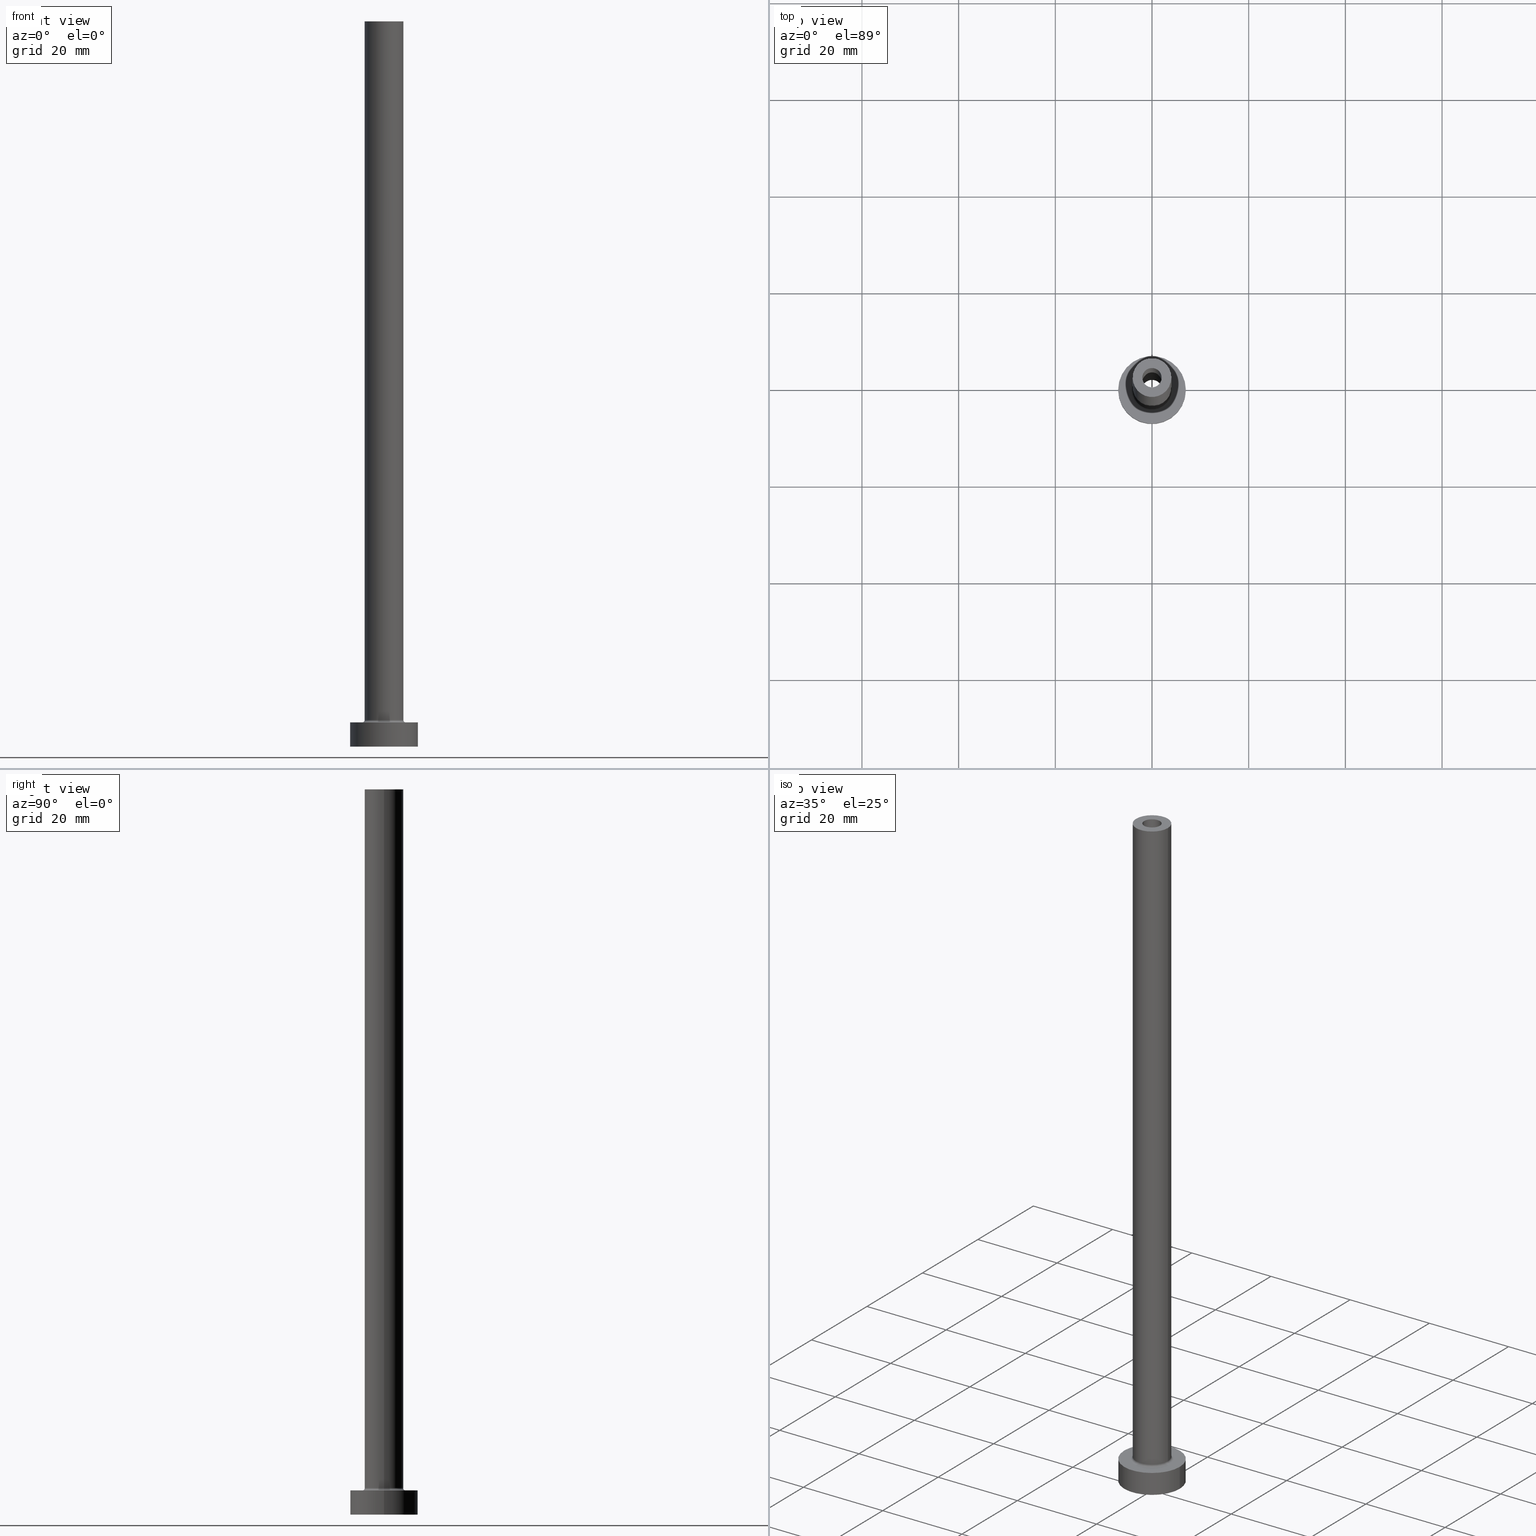
[diagram: canonical four-view strip — front | top / right | iso, engineering-drawing reading convention]
A machine part, canonical four-view strip (front | top / right | iso — engineering-drawing reading convention). The complete STEP part file that produces these views, byte-faithful:
ISO-10303-21;
HEADER;
FILE_DESCRIPTION (( 'STEP AP203' ),
    '1' );
FILE_NAME ('9f6f.STEP',
    '2023-02-13T17:39:51',
    ( '' ),
    ( '' ),
    'SwSTEP 2.0',
    'SolidWorks 2019',
    '' );
FILE_SCHEMA (( 'CONFIG_CONTROL_DESIGN' ));
ENDSEC;

DATA;
#1 = EDGE_LOOP ( 'NONE', ( #318, #249 ) ) ;
#2 = CALENDAR_DATE ( 2023, 13, 2 ) ;
#3 = DIRECTION ( 'NONE',  ( 0.000000000000000000, 0.000000000000000000, 1.000000000000000000 ) ) ;
#4 = ORIENTED_EDGE ( 'NONE', *, *, #16, .T. ) ;
#5 = APPROVAL_PERSON_ORGANIZATION ( #150, #290, #76 ) ;
#6 = ORIENTED_EDGE ( 'NONE', *, *, #260, .T. ) ;
#7 = DIRECTION ( 'NONE',  ( -0.000000000000000000, -0.000000000000000000, -1.000000000000000000 ) ) ;
#8 =( NAMED_UNIT ( * ) SI_UNIT ( $, .STERADIAN. ) SOLID_ANGLE_UNIT ( ) );
#9 = ORIENTED_EDGE ( 'NONE', *, *, #151, .T. ) ;
#10 = CARTESIAN_POINT ( 'NONE',  ( 0.000000000000000000, 0.000000000000000000, 5.000000000000000000 ) ) ;
#11 = AXIS2_PLACEMENT_3D ( 'NONE', #242, #391, #131 ) ;
#12 = EDGE_CURVE ( 'NONE', #15, #372, #271, .T. ) ;
#13 = CALENDAR_DATE ( 2023, 13, 2 ) ;
#14 = ADVANCED_BREP_SHAPE_REPRESENTATION ( '9f6f', ( #267, #137 ), #116 ) ;
#15 = VERTEX_POINT ( 'NONE', #234 ) ;
#16 = EDGE_CURVE ( 'NONE', #363, #251, #229, .T. ) ;
#17 = CARTESIAN_POINT ( 'NONE',  ( 0.000000000000000000, 0.000000000000000000, 150.0000000000000000 ) ) ;
#18 = PERSON_AND_ORGANIZATION ( #88, #413 ) ;
#19 = LINE ( 'NONE', #110, #172 ) ;
#20 = AXIS2_PLACEMENT_3D ( 'NONE', #54, #352, #198 ) ;
#21 = EDGE_CURVE ( 'NONE', #94, #77, #333, .T. ) ;
#22 = DIRECTION ( 'NONE',  ( 0.000000000000000000, 0.000000000000000000, 1.000000000000000000 ) ) ;
#23 = DIRECTION ( 'NONE',  ( 0.000000000000000000, 0.000000000000000000, 1.000000000000000000 ) ) ;
#24 = EDGE_CURVE ( 'NONE', #36, #182, #208, .T. ) ;
#25 = ADVANCED_FACE ( 'NONE', ( #197, #28 ), #306, .F. ) ;
#26 = AXIS2_PLACEMENT_3D ( 'NONE', #121, #386, #83 ) ;
#27 = CARTESIAN_POINT ( 'NONE',  ( -2.149999999999999911, 0.000000000000000000, 111.0811183182043180 ) ) ;
#28 = FACE_OUTER_BOUND ( 'NONE', #185, .T. ) ;
#29 = CC_DESIGN_PERSON_AND_ORGANIZATION_ASSIGNMENT ( #68, #401, ( #111 ) ) ;
#30 = DIRECTION ( 'NONE',  ( 0.000000000000000000, 0.000000000000000000, -1.000000000000000000 ) ) ;
#31 = EDGE_LOOP ( 'NONE', ( #443, #72, #209, #341 ) ) ;
#32 = APPROVAL_DATE_TIME ( #133, #98 ) ;
#33 = CIRCLE ( 'NONE', #425, 4.500000000000000888 ) ;
#34 = ORIENTED_EDGE ( 'NONE', *, *, #216, .F. ) ;
#35 = PERSON_AND_ORGANIZATION_ROLE ( 'creator' ) ;
#36 = VERTEX_POINT ( 'NONE', #122 ) ;
#37 = ORIENTED_EDGE ( 'NONE', *, *, #305, .T. ) ;
#38 = EDGE_CURVE ( 'NONE', #301, #291, #456, .T. ) ;
#39 = CARTESIAN_POINT ( 'NONE',  ( 4.000000000000000000, 4.898587196589412829E-16, 150.0000000000000000 ) ) ;
#40 = TOROIDAL_SURFACE ( 'NONE', #11, 4.500000000000000888, 0.5000000000000000000 ) ;
#41 = EDGE_LOOP ( 'NONE', ( #218, #171 ) ) ;
#42 = ORIENTED_EDGE ( 'NONE', *, *, #274, .T. ) ;
#43 = CARTESIAN_POINT ( 'NONE',  ( 4.000000000000000000, 4.898587196589412829E-16, 5.500000000000005329 ) ) ;
#44 = CIRCLE ( 'NONE', #104, 7.000000000000000000 ) ;
#45 = EDGE_LOOP ( 'NONE', ( #259, #297, #6, #436 ) ) ;
#46 = DIRECTION ( 'NONE',  ( -1.000000000000000000, 0.000000000000000000, 0.000000000000000000 ) ) ;
#47 = MECHANICAL_CONTEXT ( 'NONE', #205, 'mechanical' ) ;
#48 = ORIENTED_EDGE ( 'NONE', *, *, #134, .F. ) ;
#49 = EDGE_CURVE ( 'NONE', #389, #245, #244, .T. ) ;
#50 = TOROIDAL_SURFACE ( 'NONE', #320, 4.500000000000000888, 0.5000000000000000000 ) ;
#51 = DATE_AND_TIME ( #13, #272 ) ;
#52 = DIRECTION ( 'NONE',  ( 0.000000000000000000, 0.000000000000000000, -1.000000000000000000 ) ) ;
#53 = CC_DESIGN_DATE_AND_TIME_ASSIGNMENT ( #51, #451, ( #70 ) ) ;
#54 = CARTESIAN_POINT ( 'NONE',  ( 0.000000000000000000, 0.000000000000000000, 5.000000000000000000 ) ) ;
#55 = APPROVAL_STATUS ( 'not_yet_approved' ) ;
#56 = DIRECTION ( 'NONE',  ( -0.000000000000000000, -0.000000000000000000, -1.000000000000000000 ) ) ;
#57 = AXIS2_PLACEMENT_3D ( 'NONE', #308, #347, #157 ) ;
#58 = CIRCLE ( 'NONE', #426, 2.000000000000000000 ) ;
#59 = CARTESIAN_POINT ( 'NONE',  ( -2.000000000000000000, 0.000000000000000000, 150.0000000000000000 ) ) ;
#60 = APPROVAL_ROLE ( '' ) ;
#61 = ADVANCED_FACE ( 'NONE', ( #351 ), #166, .F. ) ;
#62 = AXIS2_PLACEMENT_3D ( 'NONE', #419, #453, #227 ) ;
#63 = FACE_OUTER_BOUND ( 'NONE', #282, .T. ) ;
#64 = AXIS2_PLACEMENT_3D ( 'NONE', #344, #22, #175 ) ;
#65 = CC_DESIGN_APPROVAL ( #348, ( #396 ) ) ;
#66 = PRODUCT_RELATED_PRODUCT_CATEGORY ( 'detail', '', ( #204 ) ) ;
#67 = CARTESIAN_POINT ( 'NONE',  ( 2.000000000000000000, 2.449293598294705921E-16, 105.0000000000000000 ) ) ;
#68 = PERSON_AND_ORGANIZATION ( #88, #413 ) ;
#69 = CARTESIAN_POINT ( 'NONE',  ( 0.000000000000000000, 0.000000000000000000, 5.500000000000005329 ) ) ;
#70 = PRODUCT_DEFINITION ( 'NEZN�M�', '', #396, #399 ) ;
#71 = CIRCLE ( 'NONE', #64, 2.149999999999999911 ) ;
#72 = ORIENTED_EDGE ( 'NONE', *, *, #423, .T. ) ;
#73 =( NAMED_UNIT ( * ) PLANE_ANGLE_UNIT ( ) SI_UNIT ( $, .RADIAN. ) );
#74 = FACE_OUTER_BOUND ( 'NONE', #132, .T. ) ;
#75 = EDGE_LOOP ( 'NONE', ( #81, #9 ) ) ;
#76 = APPROVAL_ROLE ( '' ) ;
#77 = VERTEX_POINT ( 'NONE', #377 ) ;
#78 = ORIENTED_EDGE ( 'NONE', *, *, #409, .F. ) ;
#79 = PERSON_AND_ORGANIZATION_ROLE ( 'design_owner' ) ;
#80 = CARTESIAN_POINT ( 'NONE',  ( 0.000000000000000000, 0.000000000000000000, 0.000000000000000000 ) ) ;
#81 = ORIENTED_EDGE ( 'NONE', *, *, #38, .T. ) ;
#82 = CARTESIAN_POINT ( 'NONE',  ( 0.000000000000000000, 0.000000000000000000, 150.0000000000000000 ) ) ;
#83 = DIRECTION ( 'NONE',  ( 1.000000000000000000, 0.000000000000000000, 0.000000000000000000 ) ) ;
#84 = CARTESIAN_POINT ( 'NONE',  ( 0.000000000000000000, 0.000000000000000000, 5.000000000000000000 ) ) ;
#85 = VECTOR ( 'NONE', #7, 1000.000000000000000 ) ;
#86 = ADVANCED_FACE ( 'NONE', ( #304 ), #407, .T. ) ;
#87 = DATE_AND_TIME ( #312, #196 ) ;
#88 = PERSON ( 'NEUR�EN�', 'NEUR�EN�', 'NEUR�EN�', ('NEUR�EN�'), ('NEUR�EN�'), ('NEUR�EN�') ) ;
#89 = CARTESIAN_POINT ( 'NONE',  ( -2.149999999999999911, 0.000000000000000000, 0.000000000000000000 ) ) ;
#90 = DIRECTION ( 'NONE',  ( 0.000000000000000000, 0.000000000000000000, 1.000000000000000000 ) ) ;
#91 = CARTESIAN_POINT ( 'NONE',  ( -4.000000000000000000, 0.000000000000000000, 150.0000000000000000 ) ) ;
#92 = AXIS2_PLACEMENT_3D ( 'NONE', #84, #23, #421 ) ;
#93 = CIRCLE ( 'NONE', #26, 2.000000000000000000 ) ;
#94 = VERTEX_POINT ( 'NONE', #258 ) ;
#95 = EDGE_CURVE ( 'NONE', #182, #36, #417, .T. ) ;
#96 = DIRECTION ( 'NONE',  ( -1.000000000000000000, 0.000000000000000000, 0.000000000000000000 ) ) ;
#97 = PERSON_AND_ORGANIZATION ( #88, #413 ) ;
#98 = APPROVAL ( #101, 'NEUR�EN�' ) ;
#99 = CARTESIAN_POINT ( 'NONE',  ( 0.000000000000000000, 0.000000000000000000, 5.000000000000000000 ) ) ;
#100 = ORIENTED_EDGE ( 'NONE', *, *, #49, .T. ) ;
#101 = APPROVAL_STATUS ( 'not_yet_approved' ) ;
#102 = AXIS2_PLACEMENT_3D ( 'NONE', #455, #450, #124 ) ;
#103 = CARTESIAN_POINT ( 'NONE',  ( 2.000000000000000000, 2.449293598294705921E-16, 150.0000000000000000 ) ) ;
#104 = AXIS2_PLACEMENT_3D ( 'NONE', #10, #440, #444 ) ;
#105 = ADVANCED_FACE ( 'NONE', ( #449 ), #193, .T. ) ;
#106 = DIRECTION ( 'NONE',  ( -0.000000000000000000, -0.000000000000000000, -1.000000000000000000 ) ) ;
#107 = ORIENTED_EDGE ( 'NONE', *, *, #151, .F. ) ;
#108 = DIRECTION ( 'NONE',  ( -0.000000000000000000, -0.000000000000000000, -1.000000000000000000 ) ) ;
#109 = DIRECTION ( 'NONE',  ( 1.000000000000000000, 0.000000000000000000, 0.000000000000000000 ) ) ;
#110 = CARTESIAN_POINT ( 'NONE',  ( -4.000000000000000000, 0.000000000000000000, 150.0000000000000000 ) ) ;
#111 = SECURITY_CLASSIFICATION ( '', '', #174 ) ;
#112 = APPLICATION_PROTOCOL_DEFINITION ( 'international standard', 'config_control_design', 1994, #205 ) ;
#113 = CARTESIAN_POINT ( 'NONE',  ( -4.500000000000000888, 5.510910596163088569E-16, 5.000000000000002665 ) ) ;
#114 = ORIENTED_EDGE ( 'NONE', *, *, #216, .T. ) ;
#115 = EDGE_CURVE ( 'NONE', #332, #286, #303, .T. ) ;
#116 =( GEOMETRIC_REPRESENTATION_CONTEXT ( 3 ) GLOBAL_UNCERTAINTY_ASSIGNED_CONTEXT ( ( #118 ) ) GLOBAL_UNIT_ASSIGNED_CONTEXT ( ( #411, #73, #8 ) ) REPRESENTATION_CONTEXT ( 'NONE', 'WORKASPACE' ) );
#117 = EDGE_LOOP ( 'NONE', ( #42, #280, #189, #225 ) ) ;
#118 = UNCERTAINTY_MEASURE_WITH_UNIT (LENGTH_MEASURE( 1.000000000000000082E-05 ), #411, 'distance_accuracy_value', 'NONE');
#119 = DIRECTION ( 'NONE',  ( 0.000000000000000000, 0.000000000000000000, -1.000000000000000000 ) ) ;
#120 = PERSON_AND_ORGANIZATION ( #88, #413 ) ;
#121 = CARTESIAN_POINT ( 'NONE',  ( 0.000000000000000000, 0.000000000000000000, 150.0000000000000000 ) ) ;
#122 = CARTESIAN_POINT ( 'NONE',  ( 2.149999999999999911, 2.632990618166809235E-16, 0.000000000000000000 ) ) ;
#123 = DIRECTION ( 'NONE',  ( 0.000000000000000000, 0.000000000000000000, 1.000000000000000000 ) ) ;
#124 = DIRECTION ( 'NONE',  ( 1.000000000000000000, 0.000000000000000000, 0.000000000000000000 ) ) ;
#125 = CARTESIAN_POINT ( 'NONE',  ( 0.000000000000000000, 0.000000000000000000, 5.000000000000000000 ) ) ;
#126 = DIRECTION ( 'NONE',  ( 1.000000000000000000, 0.000000000000000000, 0.000000000000000000 ) ) ;
#127 = EDGE_CURVE ( 'NONE', #251, #265, #19, .T. ) ;
#128 = AXIS2_PLACEMENT_3D ( 'NONE', #99, #106, #96 ) ;
#129 = CARTESIAN_POINT ( 'NONE',  ( -7.000000000000000000, 0.000000000000000000, 0.000000000000000000 ) ) ;
#130 = EDGE_LOOP ( 'NONE', ( #357, #414, #412, #100 ) ) ;
#131 = DIRECTION ( 'NONE',  ( 1.000000000000000000, 0.000000000000000000, 0.000000000000000000 ) ) ;
#132 = EDGE_LOOP ( 'NONE', ( #408, #152, #445, #107 ) ) ;
#133 = DATE_AND_TIME ( #211, #264 ) ;
#134 = EDGE_CURVE ( 'NONE', #15, #389, #254, .T. ) ;
#135 = CYLINDRICAL_SURFACE ( 'NONE', #188, 2.149999999999999911 ) ;
#136 = ORIENTED_EDGE ( 'NONE', *, *, #21, .F. ) ;
#137 = AXIS2_PLACEMENT_3D ( 'NONE', #366, #221, #109 ) ;
#138 = CC_DESIGN_PERSON_AND_ORGANIZATION_ASSIGNMENT ( #256, #79, ( #204 ) ) ;
#139 = VERTEX_POINT ( 'NONE', #43 ) ;
#140 = DIRECTION ( 'NONE',  ( 0.000000000000000000, 0.000000000000000000, 1.000000000000000000 ) ) ;
#141 = CARTESIAN_POINT ( 'NONE',  ( 4.500000000000000888, 0.000000000000000000, 5.000000000000002665 ) ) ;
#142 = ADVANCED_FACE ( 'NONE', ( #74 ), #145, .F. ) ;
#143 = CARTESIAN_POINT ( 'NONE',  ( 0.000000000000000000, 0.000000000000000000, 111.0811183182043180 ) ) ;
#144 = AXIS2_PLACEMENT_3D ( 'NONE', #186, #447, #298 ) ;
#145 = CYLINDRICAL_SURFACE ( 'NONE', #404, 2.000000000000000000 ) ;
#146 = CC_DESIGN_APPROVAL ( #98, ( #111 ) ) ;
#147 = CARTESIAN_POINT ( 'NONE',  ( 0.000000000000000000, 0.000000000000000000, 150.0000000000000000 ) ) ;
#148 = DIRECTION ( 'NONE',  ( -0.000000000000000000, -0.000000000000000000, -1.000000000000000000 ) ) ;
#149 = ORIENTED_EDGE ( 'NONE', *, *, #168, .F. ) ;
#150 = PERSON_AND_ORGANIZATION ( #88, #413 ) ;
#151 = EDGE_CURVE ( 'NONE', #291, #301, #58, .T. ) ;
#152 = ORIENTED_EDGE ( 'NONE', *, *, #115, .T. ) ;
#153 = FACE_OUTER_BOUND ( 'NONE', #207, .T. ) ;
#154 = DIRECTION ( 'NONE',  ( -1.000000000000000000, 0.000000000000000000, 0.000000000000000000 ) ) ;
#155 = CIRCLE ( 'NONE', #222, 0.5000000000000004441 ) ;
#156 = AXIS2_PLACEMENT_3D ( 'NONE', #370, #343, #154 ) ;
#157 = DIRECTION ( 'NONE',  ( 1.000000000000000000, 0.000000000000000000, 0.000000000000000000 ) ) ;
#158 = DIRECTION ( 'NONE',  ( 0.000000000000000000, 0.000000000000000000, 1.000000000000000000 ) ) ;
#159 = CARTESIAN_POINT ( 'NONE',  ( 7.000000000000000000, 8.572527594031473190E-16, 0.000000000000000000 ) ) ;
#160 = DIRECTION ( 'NONE',  ( 1.000000000000000000, 0.000000000000000000, 0.000000000000000000 ) ) ;
#161 = COORDINATED_UNIVERSAL_TIME_OFFSET ( 1, 0, .AHEAD. ) ;
#162 = CARTESIAN_POINT ( 'NONE',  ( 0.000000000000000000, 0.000000000000000000, 0.000000000000000000 ) ) ;
#163 = VECTOR ( 'NONE', #108, 1000.000000000000000 ) ;
#164 = LOCAL_TIME ( 18, 39, 51.00000000000000000, #325 ) ;
#165 = DIRECTION ( 'NONE',  ( 0.000000000000000000, 0.000000000000000000, -1.000000000000000000 ) ) ;
#166 = CYLINDRICAL_SURFACE ( 'NONE', #285, 2.000000000000000000 ) ;
#167 = FACE_OUTER_BOUND ( 'NONE', #261, .T. ) ;
#168 = EDGE_CURVE ( 'NONE', #265, #139, #314, .T. ) ;
#169 = FACE_BOUND ( 'NONE', #293, .T. ) ;
#170 = AXIS2_PLACEMENT_3D ( 'NONE', #231, #90, #160 ) ;
#171 = ORIENTED_EDGE ( 'NONE', *, *, #24, .F. ) ;
#172 = VECTOR ( 'NONE', #307, 1000.000000000000000 ) ;
#173 = DIRECTION ( 'NONE',  ( 0.000000000000000000, 0.000000000000000000, 1.000000000000000000 ) ) ;
#174 = SECURITY_CLASSIFICATION_LEVEL ( 'unclassified' ) ;
#175 = DIRECTION ( 'NONE',  ( 1.000000000000000000, 0.000000000000000000, 0.000000000000000000 ) ) ;
#176 = ORIENTED_EDGE ( 'NONE', *, *, #257, .F. ) ;
#177 = CYLINDRICAL_SURFACE ( 'NONE', #128, 7.000000000000000000 ) ;
#178 = ORIENTED_EDGE ( 'NONE', *, *, #458, .F. ) ;
#179 = VECTOR ( 'NONE', #183, 1000.000000000000000 ) ;
#180 = ORIENTED_EDGE ( 'NONE', *, *, #458, .T. ) ;
#181 = CYLINDRICAL_SURFACE ( 'NONE', #230, 2.149999999999999911 ) ;
#182 = VERTEX_POINT ( 'NONE', #89 ) ;
#183 = DIRECTION ( 'NONE',  ( 0.000000000000000000, 0.000000000000000000, -1.000000000000000000 ) ) ;
#184 = DIRECTION ( 'NONE',  ( -0.000000000000000000, -0.000000000000000000, -1.000000000000000000 ) ) ;
#185 = EDGE_LOOP ( 'NONE', ( #199, #178 ) ) ;
#186 = CARTESIAN_POINT ( 'NONE',  ( 0.000000000000000000, 0.000000000000000000, 0.000000000000000000 ) ) ;
#187 = AXIS2_PLACEMENT_3D ( 'NONE', #269, #200, #310 ) ;
#188 = AXIS2_PLACEMENT_3D ( 'NONE', #431, #403, #362 ) ;
#189 = ORIENTED_EDGE ( 'NONE', *, *, #38, .F. ) ;
#190 = APPROVAL_STATUS ( 'not_yet_approved' ) ;
#191 = CC_DESIGN_PERSON_AND_ORGANIZATION_ASSIGNMENT ( #437, #355, ( #396 ) ) ;
#192 = APPLICATION_PROTOCOL_DEFINITION ( 'international standard', 'config_control_design', 1994, #235 ) ;
#193 = CYLINDRICAL_SURFACE ( 'NONE', #156, 7.000000000000000000 ) ;
#194 = DIRECTION ( 'NONE',  ( -1.000000000000000000, 0.000000000000000000, 0.000000000000000000 ) ) ;
#195 = CIRCLE ( 'NONE', #460, 4.000000000000000000 ) ;
#196 = LOCAL_TIME ( 18, 39, 51.00000000000000000, #161 ) ;
#197 = FACE_BOUND ( 'NONE', #41, .T. ) ;
#198 = DIRECTION ( 'NONE',  ( 1.000000000000000000, 0.000000000000000000, 0.000000000000000000 ) ) ;
#199 = ORIENTED_EDGE ( 'NONE', *, *, #49, .F. ) ;
#200 = DIRECTION ( 'NONE',  ( 0.000000000000000000, 0.000000000000000000, 1.000000000000000000 ) ) ;
#201 = AXIS2_PLACEMENT_3D ( 'NONE', #82, #158, #340 ) ;
#202 = EDGE_CURVE ( 'NONE', #332, #291, #278, .T. ) ;
#203 = CARTESIAN_POINT ( 'NONE',  ( 0.000000000000000000, 0.000000000000000000, 5.000000000000000000 ) ) ;
#204 = PRODUCT ( '9f6f', '9f6f', '', ( #47 ) ) ;
#205 = APPLICATION_CONTEXT ( 'configuration controlled 3d designs of mechanical parts and assemblies' ) ;
#206 = CC_DESIGN_PERSON_AND_ORGANIZATION_ASSIGNMENT ( #18, #219, ( #70 ) ) ;
#207 = EDGE_LOOP ( 'NONE', ( #255, #78, #345, #288 ) ) ;
#208 = CIRCLE ( 'NONE', #62, 2.149999999999999911 ) ;
#209 = ORIENTED_EDGE ( 'NONE', *, *, #24, .T. ) ;
#210 = AXIS2_PLACEMENT_3D ( 'NONE', #125, #457, #238 ) ;
#211 = CALENDAR_DATE ( 2023, 13, 2 ) ;
#212 = CARTESIAN_POINT ( 'NONE',  ( 0.000000000000000000, 0.000000000000000000, 105.0000000000000000 ) ) ;
#213 = ORIENTED_EDGE ( 'NONE', *, *, #16, .F. ) ;
#214 = ORIENTED_EDGE ( 'NONE', *, *, #220, .T. ) ;
#215 = VECTOR ( 'NONE', #165, 1000.000000000000000 ) ;
#216 = EDGE_CURVE ( 'NONE', #429, #405, #373, .T. ) ;
#217 = CC_DESIGN_APPROVAL ( #290, ( #70 ) ) ;
#218 = ORIENTED_EDGE ( 'NONE', *, *, #95, .F. ) ;
#219 = PERSON_AND_ORGANIZATION_ROLE ( 'creator' ) ;
#220 = EDGE_CURVE ( 'NONE', #139, #405, #155, .T. ) ;
#221 = DIRECTION ( 'NONE',  ( 0.000000000000000000, 0.000000000000000000, 1.000000000000000000 ) ) ;
#222 = AXIS2_PLACEMENT_3D ( 'NONE', #240, #388, #30 ) ;
#223 = COORDINATED_UNIVERSAL_TIME_OFFSET ( 1, 0, .AHEAD. ) ;
#224 = DIRECTION ( 'NONE',  ( 1.000000000000000000, 0.000000000000000000, 0.000000000000000000 ) ) ;
#225 = ORIENTED_EDGE ( 'NONE', *, *, #281, .F. ) ;
#226 = FACE_OUTER_BOUND ( 'NONE', #45, .T. ) ;
#227 = DIRECTION ( 'NONE',  ( 1.000000000000000000, 0.000000000000000000, 0.000000000000000000 ) ) ;
#228 = LINE ( 'NONE', #59, #279 ) ;
#229 = CIRCLE ( 'NONE', #57, 4.000000000000000000 ) ;
#230 = AXIS2_PLACEMENT_3D ( 'NONE', #143, #376, #292 ) ;
#231 = CARTESIAN_POINT ( 'NONE',  ( 0.000000000000000000, 0.000000000000000000, 105.0000000000000000 ) ) ;
#232 = PLANE ( 'NONE',  #387 ) ;
#233 = ADVANCED_FACE ( 'NONE', ( #270, #167 ), #232, .T. ) ;
#234 = CARTESIAN_POINT ( 'NONE',  ( -7.000000000000000000, 0.000000000000000000, 5.000000000000000000 ) ) ;
#235 = APPLICATION_CONTEXT ( 'configuration controlled 3d designs of mechanical parts and assemblies' ) ;
#236 = DIRECTION ( 'NONE',  ( 1.000000000000000000, 0.000000000000000000, -0.000000000000000000 ) ) ;
#237 = DIRECTION ( 'NONE',  ( 0.000000000000000000, 0.000000000000000000, 1.000000000000000000 ) ) ;
#238 = DIRECTION ( 'NONE',  ( 1.000000000000000000, 0.000000000000000000, -0.000000000000000000 ) ) ;
#239 = AXIS2_PLACEMENT_3D ( 'NONE', #212, #3, #319 ) ;
#240 = CARTESIAN_POINT ( 'NONE',  ( 4.500000000000000888, 0.000000000000000000, 5.500000000000005329 ) ) ;
#241 = EDGE_LOOP ( 'NONE', ( #149, #37, #176, #375 ) ) ;
#242 = CARTESIAN_POINT ( 'NONE',  ( 0.000000000000000000, 0.000000000000000000, 5.500000000000005329 ) ) ;
#243 = DIRECTION ( 'NONE',  ( 1.000000000000000000, 0.000000000000000000, 0.000000000000000000 ) ) ;
#244 = CIRCLE ( 'NONE', #102, 7.000000000000000000 ) ;
#245 = VERTEX_POINT ( 'NONE', #159 ) ;
#246 = AXIS2_PLACEMENT_3D ( 'NONE', #147, #380, #406 ) ;
#247 = DATE_TIME_ROLE ( 'classification_date' ) ;
#248 = FACE_BOUND ( 'NONE', #75, .T. ) ;
#249 = ORIENTED_EDGE ( 'NONE', *, *, #454, .T. ) ;
#250 = DIRECTION ( 'NONE',  ( 1.000000000000000000, 0.000000000000000000, 0.000000000000000000 ) ) ;
#251 = VERTEX_POINT ( 'NONE', #91 ) ;
#252 = CARTESIAN_POINT ( 'NONE',  ( 4.000000000000000000, 4.898587196589412829E-16, 150.0000000000000000 ) ) ;
#253 = AXIS2_PLACEMENT_3D ( 'NONE', #415, #331, #194 ) ;
#254 = LINE ( 'NONE', #299, #364 ) ;
#255 = ORIENTED_EDGE ( 'NONE', *, *, #367, .F. ) ;
#256 = PERSON_AND_ORGANIZATION ( #88, #413 ) ;
#257 = EDGE_CURVE ( 'NONE', #405, #429, #33, .T. ) ;
#258 = CARTESIAN_POINT ( 'NONE',  ( 2.149999999999999911, 2.632990618166809235E-16, 105.0000000000000000 ) ) ;
#259 = ORIENTED_EDGE ( 'NONE', *, *, #423, .F. ) ;
#260 = EDGE_CURVE ( 'NONE', #77, #182, #416, .T. ) ;
#261 = EDGE_LOOP ( 'NONE', ( #441, #4 ) ) ;
#262 = CARTESIAN_POINT ( 'NONE',  ( 2.149999999999999911, 2.632990618166809235E-16, 111.0811183182043180 ) ) ;
#263 = AXIS2_PLACEMENT_3D ( 'NONE', #418, #382, #385 ) ;
#264 = LOCAL_TIME ( 18, 39, 51.00000000000000000, #390 ) ;
#265 = VERTEX_POINT ( 'NONE', #317 ) ;
#266 = DATE_AND_TIME ( #339, #439 ) ;
#267 = MANIFOLD_SOLID_BREP ( 'Odebrat vysunut�m4', #381 ) ;
#268 = ADVANCED_FACE ( 'NONE', ( #169, #276 ), #452, .T. ) ;
#269 = CARTESIAN_POINT ( 'NONE',  ( 0.000000000000000000, 0.000000000000000000, 105.0000000000000000 ) ) ;
#270 = FACE_BOUND ( 'NONE', #438, .T. ) ;
#271 = CIRCLE ( 'NONE', #92, 7.000000000000000000 ) ;
#272 = LOCAL_TIME ( 18, 39, 51.00000000000000000, #334 ) ;
#273 = CARTESIAN_POINT ( 'NONE',  ( 0.000000000000000000, 0.000000000000000000, 150.0000000000000000 ) ) ;
#274 = EDGE_CURVE ( 'NONE', #286, #332, #93, .T. ) ;
#275 = PERSON_AND_ORGANIZATION ( #88, #413 ) ;
#276 = FACE_OUTER_BOUND ( 'NONE', #1, .T. ) ;
#277 = CC_DESIGN_PERSON_AND_ORGANIZATION_ASSIGNMENT ( #275, #35, ( #396 ) ) ;
#278 = LINE ( 'NONE', #422, #395 ) ;
#279 = VECTOR ( 'NONE', #52, 1000.000000000000000 ) ;
#280 = ORIENTED_EDGE ( 'NONE', *, *, #202, .T. ) ;
#281 = EDGE_CURVE ( 'NONE', #286, #301, #228, .T. ) ;
#282 = EDGE_LOOP ( 'NONE', ( #336, #461, #180, #48 ) ) ;
#283 = EDGE_CURVE ( 'NONE', #77, #94, #71, .T. ) ;
#284 = CARTESIAN_POINT ( 'NONE',  ( -4.500000000000000888, 5.510910596163089556E-16, 5.500000000000005329 ) ) ;
#285 = AXIS2_PLACEMENT_3D ( 'NONE', #273, #119, #46 ) ;
#286 = VERTEX_POINT ( 'NONE', #287 ) ;
#287 = CARTESIAN_POINT ( 'NONE',  ( -2.000000000000000000, 0.000000000000000000, 150.0000000000000000 ) ) ;
#288 = ORIENTED_EDGE ( 'NONE', *, *, #168, .T. ) ;
#289 = CARTESIAN_POINT ( 'NONE',  ( 7.000000000000000000, 8.572527594031473190E-16, 5.000000000000000000 ) ) ;
#290 = APPROVAL ( #190, 'NEUR�EN�' ) ;
#291 = VERTEX_POINT ( 'NONE', #67 ) ;
#292 = DIRECTION ( 'NONE',  ( -1.000000000000000000, 0.000000000000000000, 0.000000000000000000 ) ) ;
#293 = EDGE_LOOP ( 'NONE', ( #300, #114 ) ) ;
#294 = CIRCLE ( 'NONE', #144, 7.000000000000000000 ) ;
#295 = DIRECTION ( 'NONE',  ( 1.000000000000000000, 0.000000000000000000, 0.000000000000000000 ) ) ;
#296 = CARTESIAN_POINT ( 'NONE',  ( 0.000000000000000000, 0.000000000000000000, 150.0000000000000000 ) ) ;
#297 = ORIENTED_EDGE ( 'NONE', *, *, #21, .T. ) ;
#298 = DIRECTION ( 'NONE',  ( 1.000000000000000000, 0.000000000000000000, 0.000000000000000000 ) ) ;
#299 = CARTESIAN_POINT ( 'NONE',  ( -7.000000000000000000, 0.000000000000000000, 5.000000000000000000 ) ) ;
#300 = ORIENTED_EDGE ( 'NONE', *, *, #257, .T. ) ;
#301 = VERTEX_POINT ( 'NONE', #360 ) ;
#302 = CYLINDRICAL_SURFACE ( 'NONE', #246, 4.000000000000000000 ) ;
#303 = CIRCLE ( 'NONE', #201, 2.000000000000000000 ) ;
#304 = FACE_OUTER_BOUND ( 'NONE', #354, .T. ) ;
#305 = EDGE_CURVE ( 'NONE', #265, #429, #446, .T. ) ;
#306 = PLANE ( 'NONE',  #393 ) ;
#307 = DIRECTION ( 'NONE',  ( -0.000000000000000000, -0.000000000000000000, -1.000000000000000000 ) ) ;
#308 = CARTESIAN_POINT ( 'NONE',  ( 0.000000000000000000, 0.000000000000000000, 150.0000000000000000 ) ) ;
#309 = ADVANCED_FACE ( 'NONE', ( #433 ), #135, .F. ) ;
#310 = DIRECTION ( 'NONE',  ( 1.000000000000000000, 0.000000000000000000, 0.000000000000000000 ) ) ;
#311 = EDGE_CURVE ( 'NONE', #372, #245, #365, .T. ) ;
#312 = CALENDAR_DATE ( 2023, 13, 2 ) ;
#313 = CARTESIAN_POINT ( 'NONE',  ( 0.000000000000000000, 0.000000000000000000, 105.0000000000000000 ) ) ;
#314 = CIRCLE ( 'NONE', #263, 4.000000000000000000 ) ;
#315 = DIRECTION ( 'NONE',  ( 1.000000000000000000, 0.000000000000000000, -0.000000000000000000 ) ) ;
#316 = ADVANCED_FACE ( 'NONE', ( #248, #329 ), #435, .F. ) ;
#317 = CARTESIAN_POINT ( 'NONE',  ( -4.000000000000000000, 0.000000000000000000, 5.500000000000005329 ) ) ;
#318 = ORIENTED_EDGE ( 'NONE', *, *, #12, .T. ) ;
#319 = DIRECTION ( 'NONE',  ( 1.000000000000000000, 0.000000000000000000, -0.000000000000000000 ) ) ;
#320 = AXIS2_PLACEMENT_3D ( 'NONE', #69, #140, #243 ) ;
#321 = APPROVAL_PERSON_ORGANIZATION ( #120, #348, #383 ) ;
#322 = EDGE_LOOP ( 'NONE', ( #324, #378, #214, #34 ) ) ;
#323 = FACE_OUTER_BOUND ( 'NONE', #322, .T. ) ;
#324 = ORIENTED_EDGE ( 'NONE', *, *, #305, .F. ) ;
#325 = COORDINATED_UNIVERSAL_TIME_OFFSET ( 1, 0, .AHEAD. ) ;
#326 = DIRECTION ( 'NONE',  ( 1.224646799147353207E-16, 1.000000000000000000, -0.000000000000000000 ) ) ;
#327 = ORIENTED_EDGE ( 'NONE', *, *, #274, .F. ) ;
#328 = AXIS2_PLACEMENT_3D ( 'NONE', #17, #337, #295 ) ;
#329 = FACE_OUTER_BOUND ( 'NONE', #397, .T. ) ;
#330 = CC_DESIGN_DATE_AND_TIME_ASSIGNMENT ( #361, #247, ( #111 ) ) ;
#331 = DIRECTION ( 'NONE',  ( -0.000000000000000000, -0.000000000000000000, -1.000000000000000000 ) ) ;
#332 = VERTEX_POINT ( 'NONE', #103 ) ;
#333 = CIRCLE ( 'NONE', #170, 2.149999999999999911 ) ;
#334 = COORDINATED_UNIVERSAL_TIME_OFFSET ( 1, 0, .AHEAD. ) ;
#335 = CC_DESIGN_SECURITY_CLASSIFICATION ( #111, ( #396 ) ) ;
#336 = ORIENTED_EDGE ( 'NONE', *, *, #454, .F. ) ;
#337 = DIRECTION ( 'NONE',  ( 0.000000000000000000, 0.000000000000000000, 1.000000000000000000 ) ) ;
#338 = ORIENTED_EDGE ( 'NONE', *, *, #115, .F. ) ;
#339 = CALENDAR_DATE ( 2023, 13, 2 ) ;
#340 = DIRECTION ( 'NONE',  ( 1.000000000000000000, 0.000000000000000000, 0.000000000000000000 ) ) ;
#341 = ORIENTED_EDGE ( 'NONE', *, *, #260, .F. ) ;
#342 = AXIS2_PLACEMENT_3D ( 'NONE', #284, #326, #427 ) ;
#343 = DIRECTION ( 'NONE',  ( -0.000000000000000000, -0.000000000000000000, -1.000000000000000000 ) ) ;
#344 = CARTESIAN_POINT ( 'NONE',  ( 0.000000000000000000, 0.000000000000000000, 105.0000000000000000 ) ) ;
#345 = ORIENTED_EDGE ( 'NONE', *, *, #127, .T. ) ;
#346 = ADVANCED_FACE ( 'NONE', ( #63 ), #177, .T. ) ;
#347 = DIRECTION ( 'NONE',  ( 0.000000000000000000, 0.000000000000000000, 1.000000000000000000 ) ) ;
#348 = APPROVAL ( #55, 'NEUR�EN�' ) ;
#349 = APPROVAL_DATE_TIME ( #87, #348 ) ;
#350 = DIRECTION ( 'NONE',  ( 1.000000000000000000, 0.000000000000000000, 0.000000000000000000 ) ) ;
#351 = FACE_OUTER_BOUND ( 'NONE', #117, .T. ) ;
#352 = DIRECTION ( 'NONE',  ( -0.000000000000000000, -0.000000000000000000, -1.000000000000000000 ) ) ;
#353 = EDGE_CURVE ( 'NONE', #139, #265, #195, .T. ) ;
#354 = EDGE_LOOP ( 'NONE', ( #213, #359, #368, #432 ) ) ;
#355 = PERSON_AND_ORGANIZATION_ROLE ( 'design_supplier' ) ;
#356 = CIRCLE ( 'NONE', #328, 4.000000000000000000 ) ;
#357 = ORIENTED_EDGE ( 'NONE', *, *, #311, .F. ) ;
#358 = FACE_OUTER_BOUND ( 'NONE', #241, .T. ) ;
#359 = ORIENTED_EDGE ( 'NONE', *, *, #367, .T. ) ;
#360 = CARTESIAN_POINT ( 'NONE',  ( -2.000000000000000000, 0.000000000000000000, 105.0000000000000000 ) ) ;
#361 = DATE_AND_TIME ( #2, #164 ) ;
#362 = DIRECTION ( 'NONE',  ( -1.000000000000000000, 0.000000000000000000, 0.000000000000000000 ) ) ;
#363 = VERTEX_POINT ( 'NONE', #39 ) ;
#364 = VECTOR ( 'NONE', #148, 1000.000000000000000 ) ;
#365 = LINE ( 'NONE', #289, #163 ) ;
#366 = CARTESIAN_POINT ( 'NONE',  ( 0.000000000000000000, 0.000000000000000000, 0.000000000000000000 ) ) ;
#367 = EDGE_CURVE ( 'NONE', #363, #139, #402, .T. ) ;
#368 = ORIENTED_EDGE ( 'NONE', *, *, #353, .T. ) ;
#369 = APPROVAL_DATE_TIME ( #266, #290 ) ;
#370 = CARTESIAN_POINT ( 'NONE',  ( 0.000000000000000000, 0.000000000000000000, 5.000000000000000000 ) ) ;
#371 = ADVANCED_FACE ( 'NONE', ( #323 ), #50, .F. ) ;
#372 = VERTEX_POINT ( 'NONE', #459 ) ;
#373 = CIRCLE ( 'NONE', #20, 4.500000000000000888 ) ;
#374 = LINE ( 'NONE', #262, #179 ) ;
#375 = ORIENTED_EDGE ( 'NONE', *, *, #220, .F. ) ;
#376 = DIRECTION ( 'NONE',  ( 0.000000000000000000, 0.000000000000000000, -1.000000000000000000 ) ) ;
#377 = CARTESIAN_POINT ( 'NONE',  ( -2.149999999999999911, 0.000000000000000000, 105.0000000000000000 ) ) ;
#378 = ORIENTED_EDGE ( 'NONE', *, *, #353, .F. ) ;
#379 = ADVANCED_FACE ( 'NONE', ( #358 ), #40, .F. ) ;
#380 = DIRECTION ( 'NONE',  ( -0.000000000000000000, -0.000000000000000000, -1.000000000000000000 ) ) ;
#381 = CLOSED_SHELL ( 'NONE', ( #61, #309, #379, #86, #346, #105, #268, #25, #394, #233, #371, #430, #316, #142 ) ) ;
#382 = DIRECTION ( 'NONE',  ( 0.000000000000000000, 0.000000000000000000, 1.000000000000000000 ) ) ;
#383 = APPROVAL_ROLE ( '' ) ;
#384 = CARTESIAN_POINT ( 'NONE',  ( 0.000000000000000000, 0.000000000000000000, 150.0000000000000000 ) ) ;
#385 = DIRECTION ( 'NONE',  ( 1.000000000000000000, 0.000000000000000000, 0.000000000000000000 ) ) ;
#386 = DIRECTION ( 'NONE',  ( 0.000000000000000000, 0.000000000000000000, 1.000000000000000000 ) ) ;
#387 = AXIS2_PLACEMENT_3D ( 'NONE', #384, #420, #236 ) ;
#388 = DIRECTION ( 'NONE',  ( 0.000000000000000000, -1.000000000000000000, 0.000000000000000000 ) ) ;
#389 = VERTEX_POINT ( 'NONE', #129 ) ;
#390 = COORDINATED_UNIVERSAL_TIME_OFFSET ( 1, 0, .AHEAD. ) ;
#391 = DIRECTION ( 'NONE',  ( 0.000000000000000000, 0.000000000000000000, 1.000000000000000000 ) ) ;
#392 = ORIENTED_EDGE ( 'NONE', *, *, #283, .F. ) ;
#393 = AXIS2_PLACEMENT_3D ( 'NONE', #162, #237, #315 ) ;
#394 = ADVANCED_FACE ( 'NONE', ( #153 ), #302, .T. ) ;
#395 = VECTOR ( 'NONE', #424, 1000.000000000000000 ) ;
#396 = PRODUCT_DEFINITION_FORMATION_WITH_SPECIFIED_SOURCE ( 'LIBOVOLN�', '', #204, .NOT_KNOWN. ) ;
#397 = EDGE_LOOP ( 'NONE', ( #392, #136 ) ) ;
#398 = SHAPE_DEFINITION_REPRESENTATION ( #428, #14 ) ;
#399 = DESIGN_CONTEXT ( 'detailed design', #235, 'design' ) ;
#400 = CARTESIAN_POINT ( 'NONE',  ( 0.000000000000000000, 0.000000000000000000, 5.500000000000005329 ) ) ;
#401 = PERSON_AND_ORGANIZATION_ROLE ( 'classification_officer' ) ;
#402 = LINE ( 'NONE', #252, #85 ) ;
#403 = DIRECTION ( 'NONE',  ( 0.000000000000000000, 0.000000000000000000, -1.000000000000000000 ) ) ;
#404 = AXIS2_PLACEMENT_3D ( 'NONE', #296, #410, #442 ) ;
#405 = VERTEX_POINT ( 'NONE', #141 ) ;
#406 = DIRECTION ( 'NONE',  ( -1.000000000000000000, 0.000000000000000000, 0.000000000000000000 ) ) ;
#407 = CYLINDRICAL_SURFACE ( 'NONE', #253, 4.000000000000000000 ) ;
#408 = ORIENTED_EDGE ( 'NONE', *, *, #202, .F. ) ;
#409 = EDGE_CURVE ( 'NONE', #251, #363, #356, .T. ) ;
#410 = DIRECTION ( 'NONE',  ( 0.000000000000000000, 0.000000000000000000, -1.000000000000000000 ) ) ;
#411 =( LENGTH_UNIT ( ) NAMED_UNIT ( * ) SI_UNIT ( .MILLI., .METRE. ) );
#412 = ORIENTED_EDGE ( 'NONE', *, *, #134, .T. ) ;
#413 = ORGANIZATION ( 'NEUR�EN�', 'NEUR�EN�', '' ) ;
#414 = ORIENTED_EDGE ( 'NONE', *, *, #12, .F. ) ;
#415 = CARTESIAN_POINT ( 'NONE',  ( 0.000000000000000000, 0.000000000000000000, 150.0000000000000000 ) ) ;
#416 = LINE ( 'NONE', #27, #215 ) ;
#417 = CIRCLE ( 'NONE', #434, 2.149999999999999911 ) ;
#418 = CARTESIAN_POINT ( 'NONE',  ( 0.000000000000000000, 0.000000000000000000, 5.500000000000005329 ) ) ;
#419 = CARTESIAN_POINT ( 'NONE',  ( 0.000000000000000000, 0.000000000000000000, 0.000000000000000000 ) ) ;
#420 = DIRECTION ( 'NONE',  ( 0.000000000000000000, 0.000000000000000000, 1.000000000000000000 ) ) ;
#421 = DIRECTION ( 'NONE',  ( 1.000000000000000000, 0.000000000000000000, 0.000000000000000000 ) ) ;
#422 = CARTESIAN_POINT ( 'NONE',  ( 2.000000000000000000, 2.449293598294705921E-16, 150.0000000000000000 ) ) ;
#423 = EDGE_CURVE ( 'NONE', #94, #36, #374, .T. ) ;
#424 = DIRECTION ( 'NONE',  ( 0.000000000000000000, 0.000000000000000000, -1.000000000000000000 ) ) ;
#425 = AXIS2_PLACEMENT_3D ( 'NONE', #203, #56, #350 ) ;
#426 = AXIS2_PLACEMENT_3D ( 'NONE', #313, #123, #126 ) ;
#427 = DIRECTION ( 'NONE',  ( -1.000000000000000000, 1.224646799147351482E-16, 0.000000000000000000 ) ) ;
#428 = PRODUCT_DEFINITION_SHAPE ( 'NONE', 'NONE',  #70 ) ;
#429 = VERTEX_POINT ( 'NONE', #113 ) ;
#430 = ADVANCED_FACE ( 'NONE', ( #226 ), #181, .F. ) ;
#431 = CARTESIAN_POINT ( 'NONE',  ( 0.000000000000000000, 0.000000000000000000, 111.0811183182043180 ) ) ;
#432 = ORIENTED_EDGE ( 'NONE', *, *, #127, .F. ) ;
#433 = FACE_OUTER_BOUND ( 'NONE', #31, .T. ) ;
#434 = AXIS2_PLACEMENT_3D ( 'NONE', #80, #184, #224 ) ;
#435 = PLANE ( 'NONE',  #239 ) ;
#436 = ORIENTED_EDGE ( 'NONE', *, *, #95, .T. ) ;
#437 = PERSON_AND_ORGANIZATION ( #88, #413 ) ;
#438 = EDGE_LOOP ( 'NONE', ( #327, #338 ) ) ;
#439 = LOCAL_TIME ( 18, 39, 51.00000000000000000, #223 ) ;
#440 = DIRECTION ( 'NONE',  ( 0.000000000000000000, 0.000000000000000000, 1.000000000000000000 ) ) ;
#441 = ORIENTED_EDGE ( 'NONE', *, *, #409, .T. ) ;
#442 = DIRECTION ( 'NONE',  ( -1.000000000000000000, 0.000000000000000000, 0.000000000000000000 ) ) ;
#443 = ORIENTED_EDGE ( 'NONE', *, *, #283, .T. ) ;
#444 = DIRECTION ( 'NONE',  ( 1.000000000000000000, 0.000000000000000000, 0.000000000000000000 ) ) ;
#445 = ORIENTED_EDGE ( 'NONE', *, *, #281, .T. ) ;
#446 = CIRCLE ( 'NONE', #342, 0.5000000000000004441 ) ;
#447 = DIRECTION ( 'NONE',  ( 0.000000000000000000, 0.000000000000000000, 1.000000000000000000 ) ) ;
#448 = APPROVAL_PERSON_ORGANIZATION ( #97, #98, #60 ) ;
#449 = FACE_OUTER_BOUND ( 'NONE', #130, .T. ) ;
#450 = DIRECTION ( 'NONE',  ( 0.000000000000000000, 0.000000000000000000, 1.000000000000000000 ) ) ;
#451 = DATE_TIME_ROLE ( 'creation_date' ) ;
#452 = PLANE ( 'NONE',  #210 ) ;
#453 = DIRECTION ( 'NONE',  ( -0.000000000000000000, -0.000000000000000000, -1.000000000000000000 ) ) ;
#454 = EDGE_CURVE ( 'NONE', #372, #15, #44, .T. ) ;
#455 = CARTESIAN_POINT ( 'NONE',  ( 0.000000000000000000, 0.000000000000000000, 0.000000000000000000 ) ) ;
#456 = CIRCLE ( 'NONE', #187, 2.000000000000000000 ) ;
#457 = DIRECTION ( 'NONE',  ( 0.000000000000000000, 0.000000000000000000, 1.000000000000000000 ) ) ;
#458 = EDGE_CURVE ( 'NONE', #245, #389, #294, .T. ) ;
#459 = CARTESIAN_POINT ( 'NONE',  ( 7.000000000000000000, 8.572527594031473190E-16, 5.000000000000000000 ) ) ;
#460 = AXIS2_PLACEMENT_3D ( 'NONE', #400, #173, #250 ) ;
#461 = ORIENTED_EDGE ( 'NONE', *, *, #311, .T. ) ;
ENDSEC;
END-ISO-10303-21;
